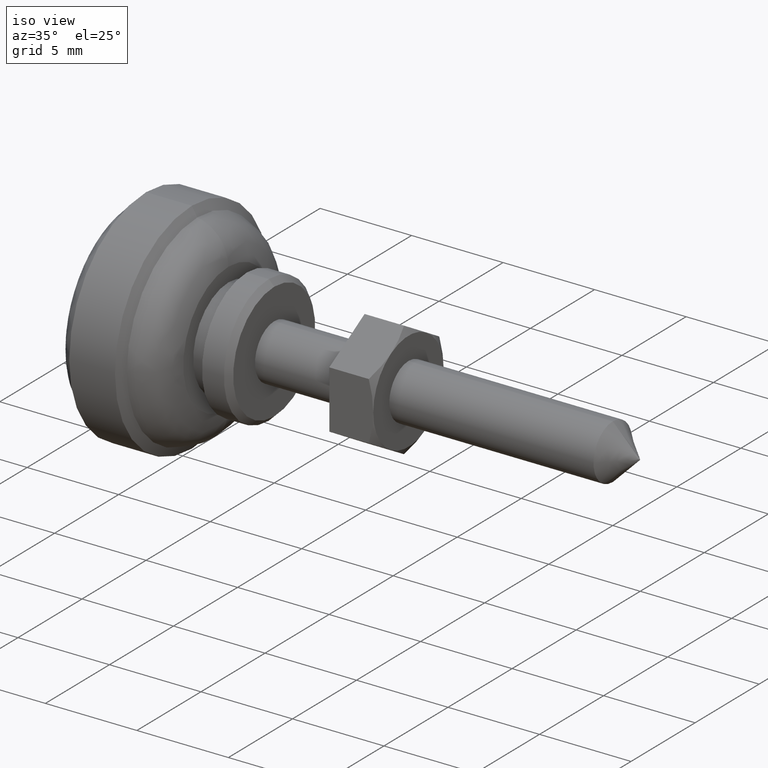
[diagram: clean part render]
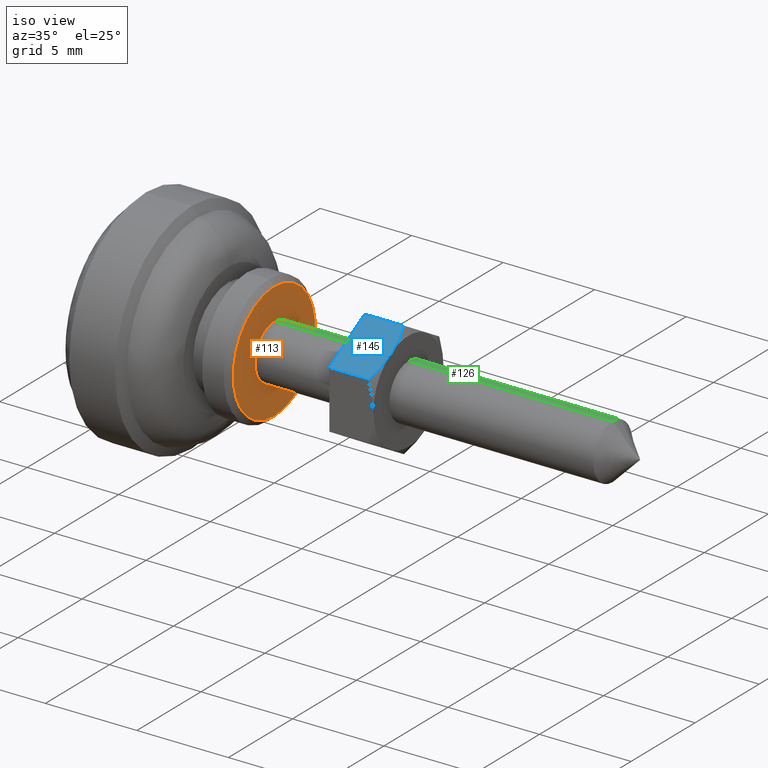
[diagram: same view with three faces highlighted in distinct colors, each labeled with its STEP entity id]
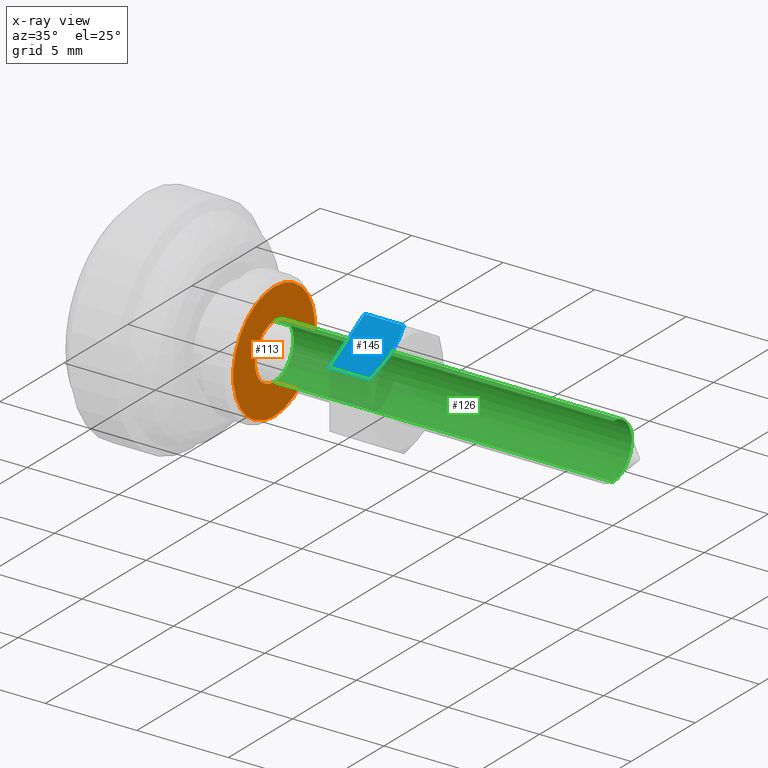
[diagram: x-ray of the same camera — body ghosted, the three highlighted faces saturated]
A machine part, iso view with three faces highlighted in distinct colors.
The next image is the same camera in x-ray (body ghosted, the three faces saturated) — at least one of them is partly hidden behind the body in this view.
Their STEP definitions:

[orange] entity #113 — the highlighted planar face has unit normal (1, 0, 0).
#113=ADVANCED_FACE('',(#163,#164),#162,.T.);
#162=PLANE('',#565);
#163=FACE_OUTER_BOUND('',#566,.T.);
#164=FACE_BOUND('',#567,.T.);
#562=CARTESIAN_POINT('',(-2.00000000000E+01,-6.65107510106E+00,4.16000000000E+00));
#563=DIRECTION('',(1.00000000000E+00,0.00000000000E+00,0.00000000000E+00));
#564=DIRECTION('',(0.00000000000E+00,0.00000000000E+00,-1.00000000000E+00));
#565=AXIS2_PLACEMENT_3D('',#562,#563,#564);
#566=EDGE_LOOP('',(#908,#909));
#567=EDGE_LOOP('',(#910,#911));
#908=ORIENTED_EDGE('',*,*,#1076,.F.);
#909=ORIENTED_EDGE('',*,*,#1077,.F.);
#910=ORIENTED_EDGE('',*,*,#1078,.T.);
#911=ORIENTED_EDGE('',*,*,#1079,.T.);
#1076=EDGE_CURVE('',#1172,#1173,#1174,.T.);
#1077=EDGE_CURVE('',#1173,#1172,#1180,.T.);
#1078=EDGE_CURVE('',#1186,#1187,#1188,.T.);
#1079=EDGE_CURVE('',#1187,#1186,#1194,.T.);
#1172=VERTEX_POINT('',#1723);
#1173=VERTEX_POINT('',#1724);
#1174=CIRCLE('',#1728,3.20000000000E+00);
#1180=CIRCLE('',#1732,3.20000000000E+00);
#1186=VERTEX_POINT('',#1733);
#1187=VERTEX_POINT('',#1734);
#1188=CIRCLE('',#1738,1.50000000000E+00);
#1194=CIRCLE('',#1742,1.50000000000E+00);
#1723=CARTESIAN_POINT('',(-2.00000000000E+01,0.00000000000E+00,-3.20000000000E+00));
#1724=CARTESIAN_POINT('',(-2.00000000000E+01,0.00000000000E+00,3.20000000000E+00));
#1725=CARTESIAN_POINT('',(-2.00000000000E+01,0.00000000000E+00,0.00000000000E+00));
#1726=DIRECTION('',(-1.00000000000E+00,0.00000000000E+00,0.00000000000E+00));
#1727=DIRECTION('',(0.00000000000E+00,-1.22460635382E-16,1.00000000000E+00));
#1728=AXIS2_PLACEMENT_3D('',#1725,#1726,#1727);
#1729=CARTESIAN_POINT('',(-2.00000000000E+01,0.00000000000E+00,0.00000000000E+00));
#1730=DIRECTION('',(-1.00000000000E+00,0.00000000000E+00,0.00000000000E+00));
#1731=DIRECTION('',(0.00000000000E+00,-1.22460635382E-16,1.00000000000E+00));
#1732=AXIS2_PLACEMENT_3D('',#1729,#1730,#1731);
#1733=CARTESIAN_POINT('',(-2.00000000000E+01,0.00000000000E+00,1.50000000000E+00));
#1734=CARTESIAN_POINT('',(-2.00000000000E+01,-7.40148683083E-17,-1.50000000000E+00));
#1735=CARTESIAN_POINT('',(-2.00000000000E+01,0.00000000000E+00,0.00000000000E+00));
#1736=DIRECTION('',(-1.00000000000E+00,0.00000000000E+00,0.00000000000E+00));
#1737=DIRECTION('',(0.00000000000E+00,-1.22460635382E-16,1.00000000000E+00));
#1738=AXIS2_PLACEMENT_3D('',#1735,#1736,#1737);
#1739=CARTESIAN_POINT('',(-2.00000000000E+01,0.00000000000E+00,0.00000000000E+00));
#1740=DIRECTION('',(-1.00000000000E+00,0.00000000000E+00,0.00000000000E+00));
#1741=DIRECTION('',(0.00000000000E+00,-1.22460635382E-16,1.00000000000E+00));
#1742=AXIS2_PLACEMENT_3D('',#1739,#1740,#1741);

[blue] entity #145 — the highlighted planar face has unit normal (0, -0.5, 0.866).
#145=ADVANCED_FACE('',(#487),#486,.T.);
#486=PLANE('',#869);
#487=FACE_OUTER_BOUND('',#870,.T.);
#866=CARTESIAN_POINT('',(-3.33419780457E+00,2.75000000000E-01,-2.40000000000E-01));
#867=DIRECTION('',(-8.66025403784E-01,-5.00000000000E-01,0.00000000000E+00));
#868=DIRECTION('',(5.00000000000E-01,-8.66025403784E-01,0.00000000000E+00));
#869=AXIS2_PLACEMENT_3D('',#866,#867,#868);
#870=EDGE_LOOP('',(#1039,#1040,#1041,#1042,#1043));
#1039=ORIENTED_EDGE('',*,*,#1145,.T.);
#1040=ORIENTED_EDGE('',*,*,#1147,.T.);
#1041=ORIENTED_EDGE('',*,*,#1148,.T.);
#1042=ORIENTED_EDGE('',*,*,#1149,.F.);
#1043=ORIENTED_EDGE('',*,*,#1150,.T.);
#1145=EDGE_CURVE('',#1629,#1622,#1630,.T.);
#1147=EDGE_CURVE('',#1622,#1542,#1642,.T.);
#1148=EDGE_CURVE('',#1542,#1648,#1649,.T.);
#1149=EDGE_CURVE('',#1655,#1648,#1656,.T.);
#1150=EDGE_CURVE('',#1655,#1629,#1662,.T.);
#1542=VERTEX_POINT('',#1960);
#1622=VERTEX_POINT('',#2009);
#1629=VERTEX_POINT('',#2016);
#1630=LINE('',#2017,#2018);
#1642=(BOUNDED_CURVE() B_SPLINE_CURVE(3,(#2023,#2024,#2025,#2026),.UNSPECIFIED.,.F.,.F.) B_SPLINE_CURVE_WITH_KNOTS((4,4),(2.38074299238E-07,1.60674432630E-03),.UNSPECIFIED.) CURVE() GEOMETRIC_REPRESENTATION_ITEM() RATIONAL_B_SPLINE_CURVE((1.00000000000E+00,1.00000000000E+00,1.00000000000E+00,1.00000000000E+00)) REPRESENTATION_ITEM('') );
#1648=VERTEX_POINT('',#2027);
#1649=(BOUNDED_CURVE() B_SPLINE_CURVE(3,(#2028,#2029,#2030,#2031,#2032,#2033),.UNSPECIFIED.,.F.,.F.) B_SPLINE_CURVE_WITH_KNOTS((4,2,4),(1.60674432630E-03,2.40699675959E-03,3.20724919289E-03),.UNSPECIFIED.) CURVE() GEOMETRIC_REPRESENTATION_ITEM() RATIONAL_B_SPLINE_CURVE((1.00000000000E+00,1.00000000000E+00,1.00000000000E+00,1.00000000000E+00,1.00000000000E+00,1.00000000000E+00)) REPRESENTATION_ITEM('') );
#1655=VERTEX_POINT('',#2034);
#1656=LINE('',#2035,#2036);
#1662=LINE('',#2038,#2039);
#1960=CARTESIAN_POINT('',(-2.38156986041E+00,-1.37500000000E+00,2.40000000000E+00));
#2009=CARTESIAN_POINT('',(-1.58771324027E+00,-2.75000000000E+00,2.15437990694E+00));
#2016=CARTESIAN_POINT('',(-1.58771324027E+00,-2.75000000000E+00,0.00000000000E+00));
#2017=CARTESIAN_POINT('',(-1.58771324027E+00,-2.75000000000E+00,0.00000000000E+00));
#2018=VECTOR('',#2019,2.15437990694E+00);
#2019=DIRECTION('',(0.00000000000E+00,0.00000000000E+00,1.00000000000E+00));
#2023=CARTESIAN_POINT('',(-1.58771324027E+00,-2.75000000000E+00,2.15437990694E+00));
#2024=CARTESIAN_POINT('',(-1.84744135448E+00,-2.30013771004E+00,2.30433400359E+00));
#2025=CARTESIAN_POINT('',(-2.11106939771E+00,-1.84352054486E+00,2.40000000000E+00));
#2026=CARTESIAN_POINT('',(-2.38156986041E+00,-1.37500000000E+00,2.40000000000E+00));
#2027=CARTESIAN_POINT('',(-3.17542648054E+00,-2.16840434497E-16,2.15437990694E+00));
#2028=CARTESIAN_POINT('',(-2.38156986041E+00,-1.37500000000E+00,2.40000000000E+00));
#2029=CARTESIAN_POINT('',(-2.51631484083E+00,-1.14161484784E+00,2.40000000000E+00));
#2030=CARTESIAN_POINT('',(-2.65088374849E+00,-9.08534662652E-01,2.37648039543E+00));
#2031=CARTESIAN_POINT('',(-2.91526545497E+00,-4.50612114434E-01,2.29091056954E+00));
#2032=CARTESIAN_POINT('',(-3.04588635631E+00,-2.24370076792E-01,2.22916993254E+00));
#2033=CARTESIAN_POINT('',(-3.17542648054E+00,9.16949504701E-14,2.15437990694E+00));
#2034=CARTESIAN_POINT('',(-3.17542648054E+00,4.44089209850E-16,0.00000000000E+00));
#2035=CARTESIAN_POINT('',(-3.17542648054E+00,4.44089209850E-16,0.00000000000E+00));
#2036=VECTOR('',#2037,2.15437990694E+00);
#2037=DIRECTION('',(0.00000000000E+00,0.00000000000E+00,1.00000000000E+00));
#2038=CARTESIAN_POINT('',(-3.17542648054E+00,4.99600361081E-16,0.00000000000E+00));
#2039=VECTOR('',#2040,3.17542648054E+00);
#2040=DIRECTION('',(5.00000000000E-01,-8.66025403784E-01,0.00000000000E+00));

[green] entity #126 — the highlighted cylindrical surface (edge-blend (fillet) strip) has radius 1.5 mm, axis along (1, 0, 0).
#126=ADVANCED_FACE('',(#296),#295,.T.);
#295=CYLINDRICAL_SURFACE('',#711,1.50000000000E+00);
#296=FACE_OUTER_BOUND('',#712,.T.);
#708=CARTESIAN_POINT('',(0.00000000000E+00,0.00000000000E+00,0.00000000000E+00));
#709=DIRECTION('',(1.00000000000E+00,-0.00000000000E+00,-0.00000000000E+00));
#710=DIRECTION('',(0.00000000000E+00,0.00000000000E+00,-1.00000000000E+00));
#711=AXIS2_PLACEMENT_3D('',#708,#709,#710);
#712=EDGE_LOOP('',(#958,#959,#960,#961));
#958=ORIENTED_EDGE('',*,*,#1091,.T.);
#959=ORIENTED_EDGE('',*,*,#1108,.F.);
#960=ORIENTED_EDGE('',*,*,#1078,.F.);
#961=ORIENTED_EDGE('',*,*,#1109,.T.);
#1078=EDGE_CURVE('',#1186,#1187,#1188,.T.);
#1091=EDGE_CURVE('',#1257,#1256,#1277,.T.);
#1108=EDGE_CURVE('',#1187,#1256,#1387,.T.);
#1109=EDGE_CURVE('',#1186,#1257,#1393,.T.);
#1186=VERTEX_POINT('',#1733);
#1187=VERTEX_POINT('',#1734);
#1188=CIRCLE('',#1738,1.50000000000E+00);
#1256=VERTEX_POINT('',#1783);
#1257=VERTEX_POINT('',#1784);
#1277=CIRCLE('',#1797,1.50000000000E+00);
#1387=(BOUNDED_CURVE() B_SPLINE_CURVE(1,(#1857,#1858),.UNSPECIFIED.,.F.,.F.) B_SPLINE_CURVE_WITH_KNOTS((2,2),(8.33333328360E-02,9.16666665505E-01),.UNSPECIFIED.) CURVE() GEOMETRIC_REPRESENTATION_ITEM() RATIONAL_B_SPLINE_CURVE((1.00000000000E+00,1.00000000000E+00)) REPRESENTATION_ITEM('') );
#1393=(BOUNDED_CURVE() B_SPLINE_CURVE(1,(#1859,#1860),.UNSPECIFIED.,.F.,.F.) B_SPLINE_CURVE_WITH_KNOTS((2,2),(8.33333333333E-02,9.16666666667E-01),.UNSPECIFIED.) CURVE() GEOMETRIC_REPRESENTATION_ITEM() RATIONAL_B_SPLINE_CURVE((7.50000000000E-01,7.50000000000E-01)) REPRESENTATION_ITEM('') );
#1733=CARTESIAN_POINT('',(-2.00000000000E+01,0.00000000000E+00,1.50000000000E+00));
#1734=CARTESIAN_POINT('',(-2.00000000000E+01,-7.40148683083E-17,-1.50000000000E+00));
#1735=CARTESIAN_POINT('',(-2.00000000000E+01,0.00000000000E+00,0.00000000000E+00));
#1736=DIRECTION('',(-1.00000000000E+00,0.00000000000E+00,0.00000000000E+00));
#1737=DIRECTION('',(0.00000000000E+00,-1.22460635382E-16,1.00000000000E+00));
#1738=AXIS2_PLACEMENT_3D('',#1735,#1736,#1737);
#1783=CARTESIAN_POINT('',(-1.50000000000E+00,-7.40148683083E-17,-1.50000000000E+00));
#1784=CARTESIAN_POINT('',(-1.50000000000E+00,0.00000000000E+00,1.50000000000E+00));
#1794=CARTESIAN_POINT('',(-1.50000000000E+00,0.00000000000E+00,0.00000000000E+00));
#1795=DIRECTION('',(-1.00000000000E+00,0.00000000000E+00,0.00000000000E+00));
#1796=DIRECTION('',(0.00000000000E+00,-1.22460635382E-16,1.00000000000E+00));
#1797=AXIS2_PLACEMENT_3D('',#1794,#1795,#1796);
#1857=CARTESIAN_POINT('',(-2.00000000110E+01,0.00000000000E+00,-1.50000000000E+00));
#1858=CARTESIAN_POINT('',(-1.50000002580E+00,0.00000000000E+00,-1.50000000000E+00));
#1859=CARTESIAN_POINT('',(-2.00000000000E+01,-7.40148683083E-17,1.50000000000E+00));
#1860=CARTESIAN_POINT('',(-1.50000000000E+00,-7.40148683083E-17,1.50000000000E+00));